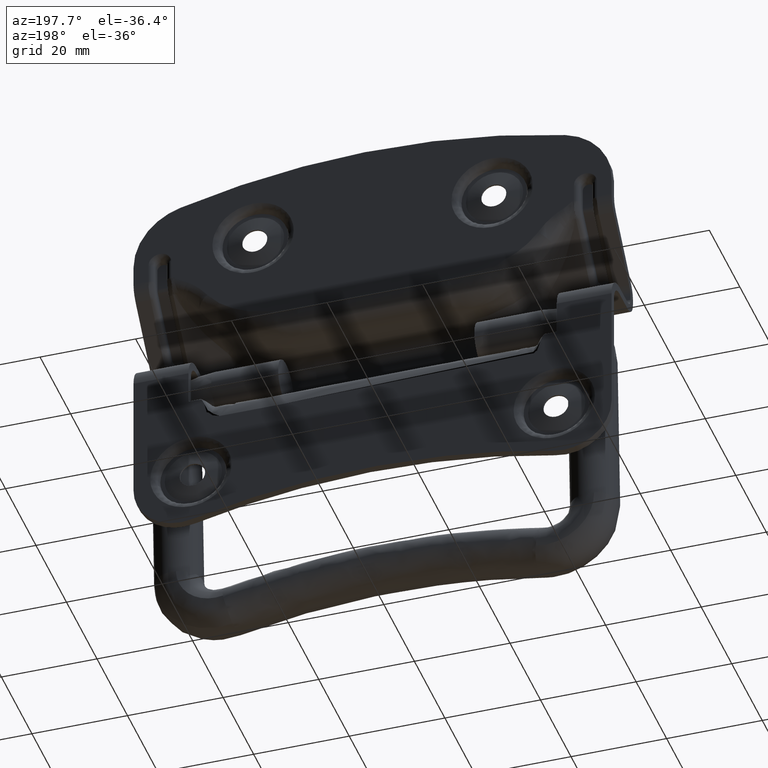
[diagram: clean part render]
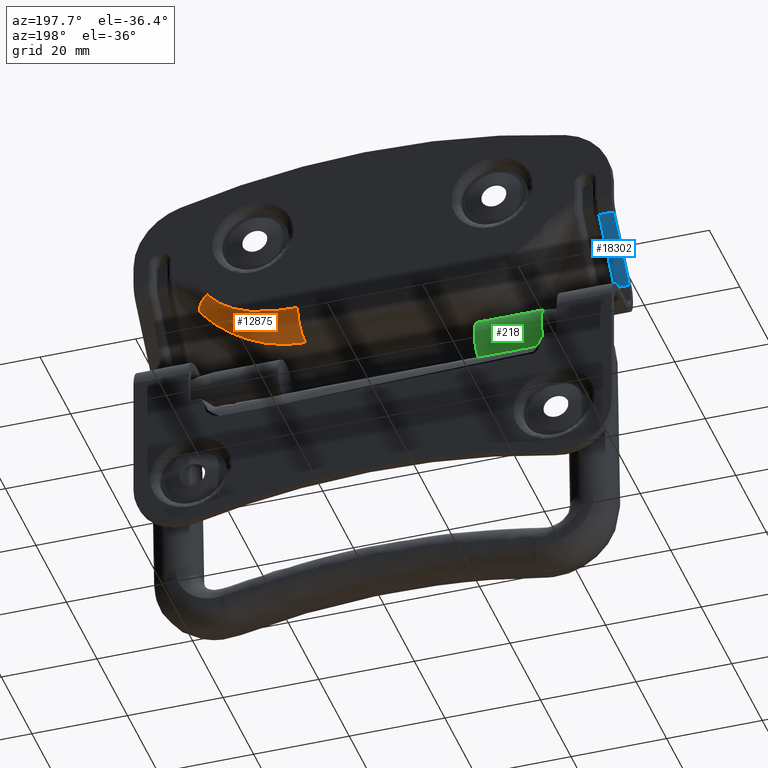
[diagram: same view with three faces highlighted in distinct colors, each labeled with its STEP entity id]
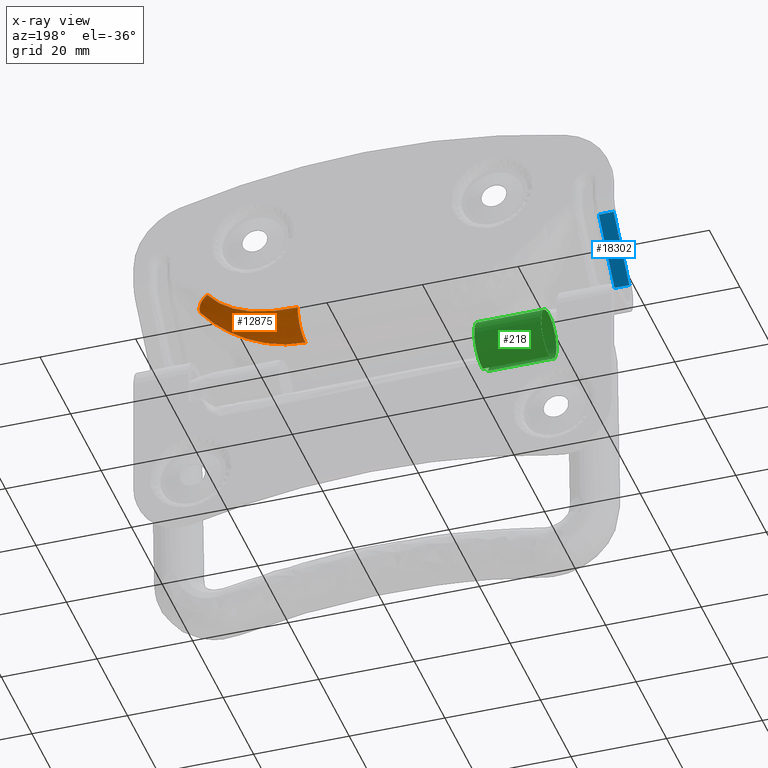
[diagram: x-ray of the same camera — body ghosted, the three highlighted faces saturated]
A machine part, auxiliary view with three faces highlighted in distinct colors.
The next image is the same camera in x-ray (body ghosted, the three faces saturated) — at least one of them is partly hidden behind the body in this view.
Their STEP definitions:

[orange] entity #12875 — the highlighted face is a freeform B-spline surface patch.
#12489=CARTESIAN_POINT('',(34.662643738364352,7.400014477414318,20.256130089252661));
#12490=CARTESIAN_POINT('',(34.671101388880231,7.400010842266958,20.249908536307004));
#12491=CARTESIAN_POINT('',(34.688406640191637,7.400003209135880,20.237178568327653));
#12492=CARTESIAN_POINT('',(35.698332820770993,7.399656371181691,19.494267234850092));
#12493=CARTESIAN_POINT('',(36.759531507466541,6.081373431551404,18.713642809535408));
#12494=CARTESIAN_POINT('',(37.030359441739215,5.232471756975100,18.514407756423495));
#12495=CARTESIAN_POINT('',(37.093769435582637,4.808236048571881,18.467747150005760));
#12496=CARTESIAN_POINT('',(37.109026596200167,4.601419557275713,18.456513226048834));
#12497=CARTESIAN_POINT('',(37.112750251999493,4.499853491559945,18.453771216477765));
#12498=CARTESIAN_POINT('',(37.113672902552622,4.449588384365417,18.453091850598920));
#12499=CARTESIAN_POINT('',(37.113904197476359,4.424591837451268,18.452921585667134));
#12500=CARTESIAN_POINT('',(37.113963102675349,4.412128375925347,18.452878242838263));
#12501=CARTESIAN_POINT('',(37.113983563816213,4.403833499588435,18.452863200303955));
#12502=CARTESIAN_POINT('',(37.113985075424210,4.396662263227849,18.452862110349063));
#12503=CARTESIAN_POINT('',(37.113986223987908,4.390617544954171,18.452861292794474));
#12504=CARTESIAN_POINT('',(37.113987756531024,4.381569386885241,18.452860219648816));
#12505=CARTESIAN_POINT('',(37.113989884776082,4.365031225293210,18.452858802255239));
#12506=CARTESIAN_POINT('',(37.113990466953290,4.354543282384281,18.452858525926331));
#12507=CARTESIAN_POINT('',(34.524661308499191,7.400014514383114,20.065935970038900));
#12508=CARTESIAN_POINT('',(34.533059287550643,7.400010881933937,20.059640846689394));
#12509=CARTESIAN_POINT('',(34.550242413959083,7.400003248278073,20.046760373116612));
#12510=CARTESIAN_POINT('',(35.553062213858887,7.399658141751877,19.295046099971429));
#12511=CARTESIAN_POINT('',(36.606821426173894,6.081951666058495,18.505147363269717));
#12512=CARTESIAN_POINT('',(36.875708125105007,5.233438924711869,18.303590457533719));
#12513=CARTESIAN_POINT('',(36.938481864994365,4.809384788669394,18.256532156973897));
#12514=CARTESIAN_POINT('',(36.953890731252748,4.602671500692584,18.244965452863578));
#12515=CARTESIAN_POINT('',(36.957641955025593,4.501146752349327,18.242151127028201));
#12516=CARTESIAN_POINT('',(36.958544816859671,4.450901334226933,18.241475194128917));
#12517=CARTESIAN_POINT('',(36.958824701700436,4.425914271088613,18.241264961478191));
#12518=CARTESIAN_POINT('',(36.958922178603792,4.413455466486351,18.241191479511418));
#12519=CARTESIAN_POINT('',(36.958971178333371,4.405163660152935,18.241154427191130));
#12520=CARTESIAN_POINT('',(36.958999000435121,4.397994911127927,18.241133263441029));
#12521=CARTESIAN_POINT('',(36.959022856918494,4.391952365689596,18.241115108195249));
#12522=CARTESIAN_POINT('',(36.959058381923207,4.382907557213478,18.241088061067892));
#12523=CARTESIAN_POINT('',(36.959114080898807,4.366375743837189,18.241045610721894));
#12524=CARTESIAN_POINT('',(36.959123387104043,4.355892020289344,18.241038477309619));
#12525=CARTESIAN_POINT('',(34.240171253142506,7.400014547952364,19.693514720066311));
#12526=CARTESIAN_POINT('',(34.248457365722160,7.400010916348322,19.687061312273741));
#12527=CARTESIAN_POINT('',(34.265411386649895,7.400003261066324,19.673857178041924));
#12528=CARTESIAN_POINT('',(35.254918778094932,7.399663643437767,18.903199537057191));
#12529=CARTESIAN_POINT('',(36.294746659661762,6.081193240693532,18.093348020157716));
#12530=CARTESIAN_POINT('',(36.560047965215048,5.232235079051666,17.886747533107052));
#12531=CARTESIAN_POINT('',(36.621190502785439,4.807934081878996,17.839154379086924));
#12532=CARTESIAN_POINT('',(36.634003844042731,4.601082439164326,17.829213199420280));
#12533=CARTESIAN_POINT('',(36.637146643992907,4.499506731072167,17.826767432050211));
#12534=CARTESIAN_POINT('',(36.638051290717698,4.449237425571144,17.826059563720477));
#12535=CARTESIAN_POINT('',(36.638045594258713,4.424238922907685,17.826058655466070));
#12536=CARTESIAN_POINT('',(36.637928500023776,4.411774492144252,17.826146171855012));
#12537=CARTESIAN_POINT('',(36.637820805791691,4.403478980725156,17.826227417625500));
#12538=CARTESIAN_POINT('',(36.637706561369242,4.396307274923768,17.826314041169486));
#12539=CARTESIAN_POINT('',(36.637610609431128,4.390262122367993,17.826386803031927));
#12540=CARTESIAN_POINT('',(36.637471659324511,4.381213266290241,17.826492169134536));
#12541=CARTESIAN_POINT('',(36.637270523705496,4.364673732250767,17.826644552110313));
#12542=CARTESIAN_POINT('',(36.637266123697088,4.354184860860634,17.826647348732394));
#12543=CARTESIAN_POINT('',(33.864466229905375,7.400014774033779,19.247753255306069));
#12544=CARTESIAN_POINT('',(33.872628632089295,7.400011127111525,19.241075771387713));
#12545=CARTESIAN_POINT('',(33.889329497550364,7.400003457226122,19.227413186569720));
#12546=CARTESIAN_POINT('',(34.864079919530091,7.399658272573803,18.429984116949299));
#12547=CARTESIAN_POINT('',(35.888578476351491,6.075796651755698,17.591844505066774));
#12548=CARTESIAN_POINT('',(36.150115785445053,5.223323557977594,17.377936455358565));
#12549=CARTESIAN_POINT('',(36.211837362331892,4.797296340673467,17.327485156780117));
#12550=CARTESIAN_POINT('',(36.227433103292732,4.589605555717400,17.314769717228511));
#12551=CARTESIAN_POINT('',(36.230855275732296,4.487613942315691,17.311987931265559));
#12552=CARTESIAN_POINT('',(36.231289746682883,4.437139037076157,17.311626805847236));
#12553=CARTESIAN_POINT('',(36.231281866563165,4.412038326199886,17.311629949896517));
#12554=CARTESIAN_POINT('',(36.231228122745620,4.399522939866957,17.311672678332787));
#12555=CARTESIAN_POINT('',(36.231174551510477,4.391193504808857,17.311715735695621));
#12556=CARTESIAN_POINT('',(36.231112217070645,4.383992369933384,17.311766083722741));
#12557=CARTESIAN_POINT('',(36.231058584476706,4.377922457025449,17.311809385879595));
#12558=CARTESIAN_POINT('',(36.230975891214342,4.368836592591022,17.311876087669848));
#12559=CARTESIAN_POINT('',(36.230808510868222,4.352229507618922,17.312010527726994));
#12560=CARTESIAN_POINT('',(36.230671162532296,4.341697818404677,17.312119670805743));
#12561=CARTESIAN_POINT('',(33.552554212520150,7.400014973620166,18.902936838102374));
#12562=CARTESIAN_POINT('',(33.560625663539987,7.400011301998076,18.896065447811409));
#12563=CARTESIAN_POINT('',(33.577140443462142,7.400003621386585,18.882006113737653));
#12564=CARTESIAN_POINT('',(34.541030498556630,7.399646267264336,18.061420115315986));
#12565=CARTESIAN_POINT('',(35.554316295962472,6.068981362347913,17.198763932820935));
#12566=CARTESIAN_POINT('',(35.813138332169274,5.212070805745937,16.978505186691290));
#12567=CARTESIAN_POINT('',(35.873897872008463,4.783857273409834,16.926832807978940));
#12568=CARTESIAN_POINT('',(35.888192583982892,4.575094176908542,16.914656148039015));
#12569=CARTESIAN_POINT('',(35.891561408505474,4.472578683263027,16.911773873094717));
#12570=CARTESIAN_POINT('',(35.892362714350512,4.421844502739250,16.911089884870123));
#12571=CARTESIAN_POINT('',(35.892549484684068,4.396614823310419,16.910933983826567));
#12572=CARTESIAN_POINT('',(35.892588222060162,4.384035131236461,16.910902839826242));
#12573=CARTESIAN_POINT('',(35.892596057541319,4.375662901743065,16.910897456158864));
#12574=CARTESIAN_POINT('',(35.892587364374698,4.368424793817018,16.910905991148173));
#12575=CARTESIAN_POINT('',(35.892579964621518,4.362323706187193,16.910913251210001));
#12576=CARTESIAN_POINT('',(35.892568872517039,4.353191165998672,16.910924130329789));
#12577=CARTESIAN_POINT('',(35.892549598486326,4.336498751640900,16.910943160128173));
#12578=CARTESIAN_POINT('',(35.892540005590902,4.325912951926310,16.910952891790760));
#12579=CARTESIAN_POINT('',(33.313124862674577,7.400015147428111,18.650202505973137));
#12580=CARTESIAN_POINT('',(33.321131726613537,7.400011454505069,18.643178604619433));
#12581=CARTESIAN_POINT('',(33.337514381733307,7.400003763880306,18.628807208941300));
#12582=CARTESIAN_POINT('',(34.293682129170811,7.399636108551142,17.790016026583643));
#12583=CARTESIAN_POINT('',(35.299046312314573,6.062659838843519,16.908051896783707));
#12584=CARTESIAN_POINT('',(35.555845848152501,5.201647839661933,16.682875443480757));
#12585=CARTESIAN_POINT('',(35.615712240687586,4.771399609269096,16.630403261546498));
#12586=CARTESIAN_POINT('',(35.629672448472185,4.561644724081489,16.618159985948203));
#12587=CARTESIAN_POINT('',(35.633108229332734,4.458642005782503,16.615146922126325));
#12588=CARTESIAN_POINT('',(35.634015163908145,4.407666779519416,16.614354120051363));
#12589=CARTESIAN_POINT('',(35.634265766212735,4.382317304927274,16.614135469619907));
#12590=CARTESIAN_POINT('',(35.634340006896721,4.369677887956904,16.614070972947186));
#12591=CARTESIAN_POINT('',(35.634372334907873,4.361265910132276,16.614043040375869));
#12592=CARTESIAN_POINT('',(35.634385392898508,4.353993433836158,16.614031960300622));
#12593=CARTESIAN_POINT('',(35.634396449569472,4.347863378792042,16.614022578402491));
#12594=CARTESIAN_POINT('',(35.634412973008764,4.338687480312035,16.614008557173449));
#12595=CARTESIAN_POINT('',(35.634442363868509,4.321915817182809,16.613983599061154));
#12596=CARTESIAN_POINT('',(35.634458646863102,4.311279753224095,16.613969743522322));
#12597=CARTESIAN_POINT('',(33.068377471046183,7.400015320699940,18.403329146651021));
#12598=CARTESIAN_POINT('',(33.076322998577673,7.400011603438846,18.396145887641246));
#12599=CARTESIAN_POINT('',(33.092580242104830,7.400003894818879,18.381448358874813));
#12600=CARTESIAN_POINT('',(34.041407685866169,7.399625921504299,17.523640273041025));
#12601=CARTESIAN_POINT('',(35.039272339172975,6.055172616348810,16.621490598202701));
#12602=CARTESIAN_POINT('',(35.294078710802467,5.189313093902327,16.391229651610505));
#12603=CARTESIAN_POINT('',(35.353308982595934,4.756653157050159,16.337715437898925));
#12604=CARTESIAN_POINT('',(35.367139324297383,4.545722748826468,16.325230859531860));
#12605=CARTESIAN_POINT('',(35.370483043621284,4.442143195361625,16.322214487398224));
#12606=CARTESIAN_POINT('',(35.371395052589527,4.390882517714075,16.321392980152822));
#12607=CARTESIAN_POINT('',(35.371654565596259,4.365391078815889,16.321160071886503));
#12608=CARTESIAN_POINT('',(35.371733757536063,4.352680877009470,16.321089340043724));
#12609=CARTESIAN_POINT('',(35.371769526583968,4.344221789478674,16.321057582161430));
#12610=CARTESIAN_POINT('',(35.371785676317330,4.336908586387330,16.321043486779839));
#12611=CARTESIAN_POINT('',(35.371799356865928,4.330744201867815,16.321031548282690));
#12612=CARTESIAN_POINT('',(35.371819860530984,4.321516916248496,16.321013661211310));
#12613=CARTESIAN_POINT('',(35.371857048328195,4.304651328202577,16.320981261030163));
#12614=CARTESIAN_POINT('',(35.371879396158583,4.293955701913419,16.320961874176682));
#12615=CARTESIAN_POINT('',(32.735194151457108,7.400015531963038,18.081955730871442));
#12616=CARTESIAN_POINT('',(32.743061708238706,7.400011779156962,18.074551204679867));
#12617=CARTESIAN_POINT('',(32.759159524256056,7.400004031703089,18.059400845521679));
#12618=CARTESIAN_POINT('',(33.698656169578662,7.399613694103234,17.175188172838258));
#12619=CARTESIAN_POINT('',(34.686984605735290,6.043694348808678,16.245021041748100));
#12620=CARTESIAN_POINT('',(34.939260771796057,5.170414597482155,16.007690679109452));
#12621=CARTESIAN_POINT('',(34.998046494285205,4.734056865722560,15.952385751781057));
#12622=CARTESIAN_POINT('',(35.011934820240299,4.521324563681282,15.939354647614779));
#12623=CARTESIAN_POINT('',(35.015258727670975,4.416860252320030,15.936254781602978));
#12624=CARTESIAN_POINT('',(35.016078850056175,4.365161798929774,15.935486950366679));
#12625=CARTESIAN_POINT('',(35.016279379959180,4.339452675133761,15.935298737863794));
#12626=CARTESIAN_POINT('',(35.016327572358833,4.326633935960560,15.935253496373411));
#12627=CARTESIAN_POINT('',(35.016342400259816,4.318102613369718,15.935239592676293));
#12628=CARTESIAN_POINT('',(35.016340315275237,4.310726960217887,15.935241592315430));
#12629=CARTESIAN_POINT('',(35.016338517950977,4.304509936098402,15.935243318824263));
#12630=CARTESIAN_POINT('',(35.016335762446253,4.295203856136522,15.935245976294116));
#12631=CARTESIAN_POINT('',(35.016330456076737,4.278194248697447,15.935251163268198));
#12632=CARTESIAN_POINT('',(35.016326717449850,4.267407289113312,15.935254975631553));
#12633=CARTESIAN_POINT('',(32.306308997268538,7.400015715024614,17.694803642800373));
#12634=CARTESIAN_POINT('',(32.314085302321878,7.400011913330455,17.687106635746701));
#12635=CARTESIAN_POINT('',(32.329996506132687,7.400004089240436,17.671357721623139));
#12636=CARTESIAN_POINT('',(33.258580838899690,7.399602138457555,16.752237561555098));
#12637=CARTESIAN_POINT('',(34.235692668361487,6.026654983141088,15.785095735690975));
#12638=CARTESIAN_POINT('',(34.485154546364690,5.142375602180090,15.538275457729155));
#12639=CARTESIAN_POINT('',(34.543477762420579,4.700528367214872,15.480623619989938));
#12640=CARTESIAN_POINT('',(34.557395068461297,4.485121570282724,15.466869238301518));
#12641=CARTESIAN_POINT('',(34.560731094259637,4.379344177770140,15.463566516909912));
#12642=CARTESIAN_POINT('',(34.561474327266438,4.326995773201274,15.462841820468492));
#12643=CARTESIAN_POINT('',(34.561624272008650,4.300963413976035,15.462701639891455));
#12644=CARTESIAN_POINT('',(34.561646414921931,4.287983507095215,15.462684066469198));
#12645=CARTESIAN_POINT('',(34.561643753688209,4.279344921733133,15.462689658812335));
#12646=CARTESIAN_POINT('',(34.561626536582750,4.271876536176829,15.462709290577260));
#12647=CARTESIAN_POINT('',(34.561611910175472,4.265581347036758,15.462725964672654));
#12648=CARTESIAN_POINT('',(34.561589893343950,4.256158264571284,15.462751055447868));
#12649=CARTESIAN_POINT('',(34.561549427074858,4.238934802514164,15.462797126072061));
#12650=CARTESIAN_POINT('',(34.561524311249052,4.228012226803383,15.462825621345235));
#12651=CARTESIAN_POINT('',(31.595523207014967,7.400015797137360,17.106244521892911));
#12652=CARTESIAN_POINT('',(31.603162517120623,7.400011927178450,17.098048397686249));
#12653=CARTESIAN_POINT('',(31.618793499681033,7.400003974761791,17.081278117289052));
#12654=CARTESIAN_POINT('',(32.531003776149852,7.399591213764398,16.102580984257742));
#12655=CARTESIAN_POINT('',(33.491229172770289,5.994129693669576,15.072411588358182));
#12656=CARTESIAN_POINT('',(33.736420039645992,5.088875682716460,14.809340013027606));
#12657=CARTESIAN_POINT('',(33.793781563371056,4.636553027873297,14.747892687152925));
#12658=CARTESIAN_POINT('',(33.807366072122228,4.416039979823885,14.733427350517886));
#12659=CARTESIAN_POINT('',(33.810590340869943,4.307755334502247,14.730015639609260));
#12660=CARTESIAN_POINT('',(33.811372259141208,4.254166329939144,14.729191677459987));
#12661=CARTESIAN_POINT('',(33.811560233843828,4.227517072930827,14.728996529100627));
#12662=CARTESIAN_POINT('',(33.811603623759190,4.214229581157113,14.728953170345148));
#12663=CARTESIAN_POINT('',(33.811615771389398,4.205386288459806,14.728942260061917));
#12664=CARTESIAN_POINT('',(33.811611804413715,4.197740926373735,14.728948358637002));
#12665=CARTESIAN_POINT('',(33.811608422885271,4.191296562038136,14.728953552719293));
#12666=CARTESIAN_POINT('',(33.811603295637461,4.181650184072616,14.728961421829707));
#12667=CARTESIAN_POINT('',(33.811593647933059,4.164018584613552,14.728976217009428));
#12668=CARTESIAN_POINT('',(33.811587067565888,4.152837179989603,14.728986314990335));
#12669=CARTESIAN_POINT('',(30.664527336428819,7.400015724780797,16.428104555028206));
#12670=CARTESIAN_POINT('',(30.672004761530356,7.400011801090363,16.419230902882827));
#12671=CARTESIAN_POINT('',(30.687304561969860,7.400003731322142,16.401074205151708));
#12672=CARTESIAN_POINT('',(31.580176590296315,7.399586686545440,15.341496149294940));
#12673=CARTESIAN_POINT('',(32.520189114828575,5.944506913848554,14.226041360119888));
#12674=CARTESIAN_POINT('',(32.760645228186270,5.007272296007837,13.940781460230168));
#12675=CARTESIAN_POINT('',(32.816748398413388,4.538971963650059,13.874309369765786));
#12676=CARTESIAN_POINT('',(32.829936028863557,4.310669962580341,13.858675956249540));
#12677=CARTESIAN_POINT('',(32.833111208105734,4.198560573441938,13.854934196229962));
#12678=CARTESIAN_POINT('',(32.833892746861160,4.143078611512803,13.854056600291273));
#12679=CARTESIAN_POINT('',(32.834082934810503,4.115487994336919,13.853858697972006));
#12680=CARTESIAN_POINT('',(32.834128484626696,4.101731133303661,13.853819034852442));
#12681=CARTESIAN_POINT('',(32.834142388822627,4.092575458799110,13.853812210673681));
#12682=CARTESIAN_POINT('',(32.834140237349374,4.084660030847640,13.853823199068007));
#12683=CARTESIAN_POINT('',(32.834138382338800,4.077988024837512,13.853832542840697));
#12684=CARTESIAN_POINT('',(32.834135540300281,4.068000896826981,13.853846644544600));
#12685=CARTESIAN_POINT('',(32.834130075895608,4.049746476649984,13.853872796664685));
#12686=CARTESIAN_POINT('',(32.834126212312860,4.038170100823105,13.853889651407414));
#12687=CARTESIAN_POINT('',(29.490687647794100,7.400016116957394,15.705311426124155));
#12688=CARTESIAN_POINT('',(29.497961073750648,7.400012207955100,15.695554707391588));
#12689=CARTESIAN_POINT('',(29.512843251198987,7.400004170044308,15.675591352410574));
#12690=CARTESIAN_POINT('',(30.381409073725425,7.399588346232064,14.510516613601139));
#12691=CARTESIAN_POINT('',(31.295387616141063,5.873488281818676,13.284625734101120));
#12692=CARTESIAN_POINT('',(31.529022204958085,4.890493053248332,12.971238622073866));
#12693=CARTESIAN_POINT('',(31.583997823974023,4.399327726758576,12.897583563623622));
#12694=CARTESIAN_POINT('',(31.597055409070972,4.159878898932301,12.880248917024149));
#12695=CARTESIAN_POINT('',(31.600183629212108,4.042295835097199,12.876156980585408));
#12696=CARTESIAN_POINT('',(31.600937041176440,3.984105112572422,12.875189672637484));
#12697=CARTESIAN_POINT('',(31.601116863092390,3.955167465089275,12.874969888969959));
#12698=CARTESIAN_POINT('',(31.601158262855119,3.940738967175700,12.874925040354402));
#12699=CARTESIAN_POINT('',(31.601169802336614,3.931136294861874,12.874916699527020));
#12700=CARTESIAN_POINT('',(31.601165958862371,3.922834420392893,12.874928047688989));
#12701=CARTESIAN_POINT('',(31.601162676011029,3.915836673939639,12.874937705166621));
#12702=CARTESIAN_POINT('',(31.601157696490215,3.905361954374920,12.874952287597942));
#12703=CARTESIAN_POINT('',(31.601148401383615,3.886216315390629,12.874979386164272));
#12704=CARTESIAN_POINT('',(31.601142393247546,3.874074754796970,12.874996998059505));
#12705=CARTESIAN_POINT('',(27.865212710793134,7.400016167054936,14.861389029460319));
#12706=CARTESIAN_POINT('',(27.872167696469980,7.400012419364004,14.850383873073698));
#12707=CARTESIAN_POINT('',(27.886397405432827,7.400004747865416,14.827867452473468));
#12708=CARTESIAN_POINT('',(28.717146066089100,7.399597931242420,13.513391709485802));
#12709=CARTESIAN_POINT('',(29.590514755700532,5.767333688980315,12.131535609023965));
#12710=CARTESIAN_POINT('',(29.813666669850871,4.715938795114729,11.778450927516127));
#12711=CARTESIAN_POINT('',(29.866218334213251,4.190592998198996,11.695393159160085));
#12712=CARTESIAN_POINT('',(29.878764542968586,3.934480899836798,11.675647322539183));
#12713=CARTESIAN_POINT('',(29.881907597044925,3.808715142817832,11.670810673836792));
#12714=CARTESIAN_POINT('',(29.882731388872244,3.746474855161845,11.669599828100599));
#12715=CARTESIAN_POINT('',(29.882959076260150,3.715523392488942,11.669288614115800));
#12716=CARTESIAN_POINT('',(29.883027176339517,3.700090791329295,11.669205883431522));
#12717=CARTESIAN_POINT('',(29.883057383822003,3.689819852373670,11.669174867114082));
#12718=CARTESIAN_POINT('',(29.883070442000669,3.680940235489425,11.669168834307413));
#12719=CARTESIAN_POINT('',(29.883081476277326,3.673455502608133,11.669163722248136));
#12720=CARTESIAN_POINT('',(29.883098063040734,3.662251826525432,11.669156067753157));
#12721=CARTESIAN_POINT('',(29.883128526947168,3.641773801114063,11.669142022248472));
#12722=CARTESIAN_POINT('',(29.883147849336083,3.628787280143444,11.669133112815967));
#12723=CARTESIAN_POINT('',(26.595254604592878,7.400014503187752,14.361567900396166));
#12724=CARTESIAN_POINT('',(26.601885070361991,7.400010909120438,14.349565089523789));
#12725=CARTESIAN_POINT('',(26.615451511256285,7.400003518595831,14.325006433036103));
#12726=CARTESIAN_POINT('',(27.407275421628032,7.399621186485401,12.891615899824842));
#12727=CARTESIAN_POINT('',(28.239488888613110,5.679122930258590,11.385248314467368));
#12728=CARTESIAN_POINT('',(28.450929333767832,4.570885535794028,11.002412125736388));
#12729=CARTESIAN_POINT('',(28.500625227253892,4.017136529709241,10.912573862986367));
#12730=CARTESIAN_POINT('',(28.513029840772919,3.747175675080785,10.890286364571320));
#12731=CARTESIAN_POINT('',(28.516286559807064,3.614609415408631,10.884489602799658));
#12732=CARTESIAN_POINT('',(28.517195720488925,3.549003550914630,10.882890890198798));
#12733=CARTESIAN_POINT('',(28.517474202232666,3.516378408449464,10.882410269477795));
#12734=CARTESIAN_POINT('',(28.517570073025794,3.500111296018232,10.882248528178565));
#12735=CARTESIAN_POINT('',(28.517619586285505,3.489284959201809,10.882166791575260));
#12736=CARTESIAN_POINT('',(28.517650051338190,3.479925178607085,10.882118493618961));
#12737=CARTESIAN_POINT('',(28.517675868172752,3.472035709130866,10.882077572477678));
#12738=CARTESIAN_POINT('',(28.517714709526423,3.460226193248722,10.882015997197023));
#12739=CARTESIAN_POINT('',(28.517786429193965,3.438640810939856,10.881902304353666));
#12740=CARTESIAN_POINT('',(28.517832755927568,3.424952032752865,10.881828886995795));
#12741=CARTESIAN_POINT('',(22.324956304152273,7.400010831806388,12.983818235968997));
#12742=CARTESIAN_POINT('',(22.330140775239688,7.400008136684458,12.968471817176550));
#12743=CARTESIAN_POINT('',(22.340749034509550,7.400002511823433,12.937071322886284));
#12744=CARTESIAN_POINT('',(22.959767797844886,7.399734168540986,11.104526212900410));
#12745=CARTESIAN_POINT('',(23.611219927571344,5.385170634058366,9.176682415768873));
#12746=CARTESIAN_POINT('',(23.777867581947419,4.087432698041937,8.684367560936440));
#12747=CARTESIAN_POINT('',(23.816367813142623,3.438973408923038,8.570042469849025));
#12748=CARTESIAN_POINT('',(23.825402380339263,3.122844485924674,8.542165282036184));
#12749=CARTESIAN_POINT('',(23.827646951360915,2.967602440640773,8.534562576177578));
#12750=CARTESIAN_POINT('',(23.828247757548997,2.890774257393993,8.532320663439704));
#12751=CARTESIAN_POINT('',(23.828421592052962,2.852568283411952,8.531581364349945));
#12752=CARTESIAN_POINT('',(23.828474439416990,2.833518517383632,8.531311052051539));
#12753=CARTESIAN_POINT('',(23.828498522397602,2.820840222917924,8.531163632850166));
#12754=CARTESIAN_POINT('',(23.828509656816934,2.809879352288808,8.531064474076395));
#12755=CARTESIAN_POINT('',(23.828519095370840,2.800640303554124,8.530980445706257));
#12756=CARTESIAN_POINT('',(23.828533275818241,2.786810640165927,8.530854091184960));
#12757=CARTESIAN_POINT('',(23.828559291885000,2.761532837728383,8.530621376520761));
#12758=CARTESIAN_POINT('',(23.828575003985655,2.745502442722784,8.530473784780254));
#12759=CARTESIAN_POINT('',(18.818800874250947,7.400007477546794,12.764095840424741));
#12760=CARTESIAN_POINT('',(18.821588320202896,7.400005663026929,12.746140249608668));
#12761=CARTESIAN_POINT('',(18.827291765332625,7.400002245684156,12.709399266932268));
#12762=CARTESIAN_POINT('',(19.160127473167130,7.399728417759317,10.565750031903475));
#12763=CARTESIAN_POINT('',(19.509971201244014,5.149745662300645,8.309332346534980));
#12764=CARTESIAN_POINT('',(19.599031857437392,3.700478779364815,7.733089702547624));
#12765=CARTESIAN_POINT('',(19.620037447097740,2.976357378961162,7.598103157130077));
#12766=CARTESIAN_POINT('',(19.625003070177744,2.623317603402722,7.566703765794353));
#12767=CARTESIAN_POINT('',(19.626204154956113,2.449961981356681,7.559513434735863));
#12768=CARTESIAN_POINT('',(19.626414223861687,2.364169817776509,7.558040022812190));
#12769=CARTESIAN_POINT('',(19.626421447475494,2.321506267629081,7.557823420569259));
#12770=CARTESIAN_POINT('',(19.626406444828788,2.300233928690102,7.557835299882135));
#12771=CARTESIAN_POINT('',(19.626389938161722,2.286076431806001,7.557883501084748));
#12772=CARTESIAN_POINT('',(19.626370238013223,2.273836729478459,7.557959651640209));
#12773=CARTESIAN_POINT('',(19.626353522550435,2.263519733647839,7.558024235828201));
#12774=CARTESIAN_POINT('',(19.626328384330375,2.248076513931941,7.558121414512524));
#12775=CARTESIAN_POINT('',(19.626282082839726,2.219849416720298,7.558300704918190));
#12776=CARTESIAN_POINT('',(19.626253934752039,2.201948610872653,7.558413652383844));
#12777=CARTESIAN_POINT('',(15.478741939574645,7.400004381656604,12.773201338595175));
#12778=CARTESIAN_POINT('',(15.478568745599672,7.400003172962791,12.755354040129024));
#12779=CARTESIAN_POINT('',(15.478214364458854,7.400000331819881,12.718836278878072));
#12780=CARTESIAN_POINT('',(15.457536349542528,7.399960193383114,10.587772164278441));
#12781=CARTESIAN_POINT('',(15.435794653102025,5.159081603503349,8.348119036598725));
#12782=CARTESIAN_POINT('',(15.430255980674309,3.715970096529657,7.776778278683357));
#12783=CARTESIAN_POINT('',(15.428967402747615,2.994798043943758,7.643443423847941));
#12784=CARTESIAN_POINT('',(15.428661668343993,2.643232008050337,7.611573625658166));
#12785=CARTESIAN_POINT('',(15.428587253587011,2.470580882574454,7.603823667437810));
#12786=CARTESIAN_POINT('',(15.428568867962577,2.385136262640397,7.601908666324987));
#12787=CARTESIAN_POINT('',(15.428564273440804,2.342645165668593,7.601430706117970));
#12788=CARTESIAN_POINT('',(15.428563112773318,2.321458790050244,7.601309943335320));
#12789=CARTESIAN_POINT('',(15.428562715686162,2.307358500024753,7.601268610019871));
#12790=CARTESIAN_POINT('',(15.428562696547587,2.295168257315335,7.601266563875260));
#12791=CARTESIAN_POINT('',(15.428562678721439,2.284892955369291,7.601264823884991));
#12792=CARTESIAN_POINT('',(15.428562649484959,2.269512154580956,7.601262186211162));
#12793=CARTESIAN_POINT('',(15.428562586630047,2.241399195010265,7.601257183730169));
#12794=CARTESIAN_POINT('',(15.428562535840783,2.223570852738989,7.601253704516166));
#12802=(BOUNDED_SURFACE()B_SPLINE_SURFACE(2,3,((#12489,#12507,#12525,#12543,#12561,#12579,#12597,#12615,#12633,#12651,#12669,#12687,#12705,#12723,#12741,#12759,#12777),(#12490,#12508,#12526,#12544,#12562,#12580,#12598,#12616,#12634,#12652,#12670,#12688,#12706,#12724,#12742,#12760,#12778),(#12491,#12509,#12527,#12545,#12563,#12581,#12599,#12617,#12635,#12653,#12671,#12689,#12707,#12725,#12743,#12761,#12779),(#12492,#12510,#12528,#12546,#12564,#12582,#12600,#12618,#12636,#12654,#12672,#12690,#12708,#12726,#12744,#12762,#12780),(#12493,#12511,#12529,#12547,#12565,#12583,#12601,#12619,#12637,#12655,#12673,#12691,#12709,#12727,#12745,#12763,#12781),(#12494,#12512,#12530,#12548,#12566,#12584,#12602,#12620,#12638,#12656,#12674,#12692,#12710,#12728,#12746,#12764,#12782),(#12495,#12513,#12531,#12549,#12567,#12585,#12603,#12621,#12639,#12657,#12675,#12693,#12711,#12729,#12747,#12765,#12783),(#12496,#12514,#12532,#12550,#12568,#12586,#12604,#12622,#12640,#12658,#12676,#12694,#12712,#12730,#12748,#12766,#12784),(#12497,#12515,#12533,#12551,#12569,#12587,#12605,#12623,#12641,#12659,#12677,#12695,#12713,#12731,#12749,#12767,#12785),(#12498,#12516,#12534,#12552,#12570,#12588,#12606,#12624,#12642,#12660,#12678,#12696,#12714,#12732,#12750,#12768,#12786),(#12499,#12517,#12535,#12553,#12571,#12589,#12607,#12625,#12643,#12661,#12679,#12697,#12715,#12733,#12751,#12769,#12787),(#12500,#12518,#12536,#12554,#12572,#12590,#12608,#12626,#12644,#12662,#12680,#12698,#12716,#12734,#12752,#12770,#12788),(#12501,#12519,#12537,#12555,#12573,#12591,#12609,#12627,#12645,#12663,#12681,#12699,#12717,#12735,#12753,#12771,#12789),(#12502,#12520,#12538,#12556,#12574,#12592,#12610,#12628,#12646,#12664,#12682,#12700,#12718,#12736,#12754,#12772,#12790),(#12503,#12521,#12539,#12557,#12575,#12593,#12611,#12629,#12647,#12665,#12683,#12701,#12719,#12737,#12755,#12773,#12791),(#12504,#12522,#12540,#12558,#12576,#12594,#12612,#12630,#12648,#12666,#12684,#12702,#12720,#12738,#12756,#12774,#12792),(#12505,#12523,#12541,#12559,#12577,#12595,#12613,#12631,#12649,#12667,#12685,#12703,#12721,#12739,#12757,#12775,#12793),(#12506,#12524,#12542,#12560,#12578,#12596,#12614,#12632,#12650,#12668,#12686,#12704,#12722,#12740,#12758,#12776,#12794)),.UNSPECIFIED.,.F.,.F.,.U.)B_SPLINE_SURFACE_WITH_KNOTS((3,1,1,1,1,1,1,1,1,1,1,1,1,1,1,1,3),(4,1,1,1,1,1,1,1,1,1,1,1,2,4),(0.0,0.042260448230966,0.086088868899219,4.310858252466037,6.423242944249446,7.479435290141151,8.007531463087002,8.271579549559927,8.403603592796390,8.469615614414622,8.502621625223739,8.519124630628298,8.535627636032855,8.547687735993682,8.559747835954509,8.583868035876163,8.626112960597327),(0.0,0.791841193814918,1.583682387629835,1.979602984537294,2.375523581444753,2.771444178352212,3.167364775259671,3.959205969074588,4.751047162889506,6.334729550519342,7.918411938149177,9.502094325779012,12.669459101038679,25.338866778109661),.UNSPECIFIED.)GEOMETRIC_REPRESENTATION_ITEM()RATIONAL_B_SPLINE_SURFACE(((1.005968336641991,1.005968336641991,1.005968336641991,1.005968336641991,1.005968336641991,1.005968336641991,1.005968336641991,1.005968336641991,1.005968336641991,1.005968336641991,1.005968336641991,1.005968336641991,1.005968336641991,1.005968336641991,1.005968336641991,1.005968336641991,1.005968336641991),(1.004503428431969,1.004503428431969,1.004503428431969,1.004503428431969,1.004503428431969,1.004503428431969,1.004503428431969,1.004503428431969,1.004503428431969,1.004503428431969,1.004503428431969,1.004503428431969,1.004503428431969,1.004503428431969,1.004503428431969,1.004503428431969,1.004503428431969),(1.001519260110974,1.001519260110974,1.001519260110974,1.001519260110974,1.001519260110974,1.001519260110974,1.001519260110974,1.001519260110974,1.001519260110974,1.001519260110974,1.001519260110974,1.001519260110974,1.001519260110974,1.001519260110974,1.001519260110974,1.001519260110974,1.001519260110974),(0.853553390593274,0.853553390593274,0.853553390593274,0.853553390593274,0.853553390593274,0.853553390593274,0.853553390593274,0.853553390593274,0.853553390593274,0.853553390593274,0.853553390593274,0.853553390593274,0.853553390593274,0.853553390593274,0.853553390593274,0.853553390593274,0.853553390593274),(0.853553390593275,0.853553390593275,0.853553390593275,0.853553390593275,0.853553390593275,0.853553390593275,0.853553390593275,0.853553390593275,0.853553390593275,0.853553390593275,0.853553390593275,0.853553390593275,0.853553390593275,0.853553390593275,0.853553390593275,0.853553390593275,0.853553390593275),(0.908470869120797,0.908470869120797,0.908470869120797,0.908470869120797,0.908470869120797,0.908470869120797,0.908470869120797,0.908470869120797,0.908470869120797,0.908470869120797,0.908470869120797,0.908470869120797,0.908470869120797,0.908470869120797,0.908470869120797,0.908470869120797,0.908470869120797),(0.949658978016438,0.949658978016438,0.949658978016438,0.949658978016438,0.949658978016438,0.949658978016438,0.949658978016438,0.949658978016438,0.949658978016438,0.949658978016438,0.949658978016438,0.949658978016438,0.949658978016438,0.949658978016438,0.949658978016438,0.949658978016438,0.949658978016438),(0.973685374872229,0.973685374872229,0.973685374872229,0.973685374872229,0.973685374872229,0.973685374872229,0.973685374872229,0.973685374872229,0.973685374872229,0.973685374872229,0.973685374872229,0.973685374872229,0.973685374872229,0.973685374872229,0.973685374872229,0.973685374872229,0.973685374872229),(0.986556658902117,0.986556658902117,0.986556658902117,0.986556658902117,0.986556658902117,0.986556658902117,0.986556658902117,0.986556658902117,0.986556658902117,0.986556658902117,0.986556658902117,0.986556658902117,0.986556658902117,0.986556658902117,0.986556658902117,0.986556658902117,0.986556658902117),(0.993206822317559,0.993206822317559,0.993206822317559,0.993206822317559,0.993206822317559,0.993206822317559,0.993206822317559,0.993206822317559,0.993206822317559,0.993206822317559,0.993206822317559,0.993206822317559,0.993206822317559,0.993206822317559,0.993206822317559,0.993206822317559,0.993206822317559),(0.996585534375405,0.996585534375405,0.996585534375405,0.996585534375405,0.996585534375405,0.996585534375405,0.996585534375405,0.996585534375405,0.996585534375405,0.996585534375405,0.996585534375405,0.996585534375405,0.996585534375405,0.996585534375405,0.996585534375405,0.996585534375405,0.996585534375405),(0.998288297991859,0.998288297991859,0.998288297991859,0.998288297991859,0.998288297991859,0.998288297991859,0.998288297991859,0.998288297991859,0.998288297991859,0.998288297991859,0.998288297991859,0.998288297991859,0.998288297991859,0.998288297991859,0.998288297991859,0.998288297991859,0.998288297991859),(0.999427942932005,0.999427942932005,0.999427942932005,0.999427942932005,0.999427942932005,0.999427942932005,0.999427942932005,0.999427942932005,0.999427942932005,0.999427942932005,0.999427942932005,0.999427942932005,0.999427942932005,0.999427942932005,0.999427942932005,0.999427942932005,0.999427942932005),(1.000418049031324,1.000418049031324,1.000418049031324,1.000418049031324,1.000418049031324,1.000418049031324,1.000418049031324,1.000418049031324,1.000418049031324,1.000418049031324,1.000418049031324,1.000418049031324,1.000418049031324,1.000418049031324,1.000418049031324,1.000418049031324,1.000418049031324),(1.001254147093973,1.001254147093973,1.001254147093973,1.001254147093973,1.001254147093973,1.001254147093973,1.001254147093973,1.001254147093973,1.001254147093973,1.001254147093973,1.001254147093973,1.001254147093973,1.001254147093973,1.001254147093973,1.001254147093973,1.001254147093973,1.001254147093973),(1.002508294187947,1.002508294187947,1.002508294187947,1.002508294187947,1.002508294187947,1.002508294187947,1.002508294187947,1.002508294187947,1.002508294187947,1.002508294187947,1.002508294187947,1.002508294187947,1.002508294187947,1.002508294187947,1.002508294187947,1.002508294187947,1.002508294187947),(1.004808762356600,1.004808762356600,1.004808762356600,1.004808762356600,1.004808762356600,1.004808762356600,1.004808762356600,1.004808762356600,1.004808762356600,1.004808762356600,1.004808762356600,1.004808762356600,1.004808762356600,1.004808762356600,1.004808762356600,1.004808762356600,1.004808762356600),(1.006273132462604,1.006273132462604,1.006273132462604,1.006273132462604,1.006273132462604,1.006273132462604,1.006273132462604,1.006273132462604,1.006273132462604,1.006273132462604,1.006273132462604,1.006273132462604,1.006273132462604,1.006273132462604,1.006273132462604,1.006273132462604,1.006273132462604)))REPRESENTATION_ITEM('')SURFACE());
#12803=CARTESIAN_POINT('',(34.565293890301398,7.400000000000000,20.053067889151301));
#12804=VERTEX_POINT('',#12803);
#12805=CARTESIAN_POINT('',(36.966538871756953,4.400000000000000,18.254729061501049));
#12806=VERTEX_POINT('',#12805);
#12807=CARTESIAN_POINT('',(34.565293890301398,7.400000000000000,20.053067889151301));
#12808=CARTESIAN_POINT('',(34.742096033159569,7.400032796042740,19.920657343468040));
#12809=CARTESIAN_POINT('',(35.076057181578193,7.353720377585665,19.670547377693602));
#12810=CARTESIAN_POINT('',(35.507157940144339,7.175771894873520,19.347687678351889));
#12811=CARTESIAN_POINT('',(35.906742440559782,6.908954655829207,19.048431114538261));
#12812=CARTESIAN_POINT('',(36.230792756997701,6.584927541803072,18.805743562596550));
#12813=CARTESIAN_POINT('',(36.526710659270499,6.156308851217217,18.584124919948980));
#12814=CARTESIAN_POINT('',(36.749995086634442,5.690938304830402,18.416902892026091));
#12815=CARTESIAN_POINT('',(36.922896066771422,5.087198055127701,18.287414002587688));
#12816=CARTESIAN_POINT('',(36.966584998789067,4.645435303344287,18.254694516074000));
#12817=CARTESIAN_POINT('',(36.966538871756953,4.400000000000000,18.254729061501049));
#12818=B_SPLINE_CURVE_WITH_KNOTS('',3,(#12807,#12808,#12809,#12810,#12811,#12812,#12813,#12814,#12815,#12816,#12817),.UNSPECIFIED.,.F.,.U.,(4,1,1,1,1,1,1,1,4),(0.000000044331519,0.662679789812905,1.251763052307449,1.693570922295758,2.356253636667262,2.798038902011060,3.387108434030322,3.976192082368088,4.712507233003953),.UNSPECIFIED.);
#12819=EDGE_CURVE('',#12804,#12806,#12818,.T.);
#12820=ORIENTED_EDGE('',*,*,#12819,.T.);
#12821=CARTESIAN_POINT('',(15.675500036184349,2.300000000000000,7.600000000000000));
#12822=VERTEX_POINT('',#12821);
#12823=CARTESIAN_POINT('',(15.675500036184349,2.300000000000000,7.600000000000002));
#12824=CARTESIAN_POINT('',(15.907665474303190,2.301019086114224,7.601759229590487));
#12825=CARTESIAN_POINT('',(16.379185804031891,2.303088816322537,7.605332166730896));
#12826=CARTESIAN_POINT('',(17.096645352164131,2.319242702144944,7.634894633973513));
#12827=CARTESIAN_POINT('',(17.834429849790592,2.344844505674438,7.684153877634890));
#12828=CARTESIAN_POINT('',(18.591849796302910,2.380916375841549,7.756619619955844));
#12829=CARTESIAN_POINT('',(19.368111927954828,2.427176921435939,7.853567629060657));
#12830=CARTESIAN_POINT('',(20.162309249254140,2.483688073848111,7.976926886042031));
#12831=CARTESIAN_POINT('',(20.973426873630551,2.550499920361086,8.128466594031547));
#12832=CARTESIAN_POINT('',(22.355422015143802,2.678926145681474,8.431881402233978));
#12833=CARTESIAN_POINT('',(24.606351246296740,2.940594925662163,9.080118857743914));
#12834=CARTESIAN_POINT('',(27.615884686715219,3.349969421700267,10.339614878246071));
#12835=CARTESIAN_POINT('',(30.428189527643671,3.759450160892646,11.993565224487000));
#12836=CARTESIAN_POINT('',(32.428375107485572,4.039433482717558,13.506435940165430));
#12837=CARTESIAN_POINT('',(33.731961569671718,4.191996689706194,14.652632368085690));
#12838=CARTESIAN_POINT('',(34.657353864346227,4.284599078873414,15.550872819414369));
#12839=CARTESIAN_POINT('',(35.500820139933332,4.350259995026973,16.452647061185559));
#12840=CARTESIAN_POINT('',(36.269927935677082,4.391891558769347,17.347954300597792));
#12841=CARTESIAN_POINT('',(36.738079715538682,4.397340771518425,17.957344989522831));
#12842=CARTESIAN_POINT('',(36.966538871756953,4.400000000000000,18.254729061501049));
#12843=B_SPLINE_CURVE_WITH_KNOTS('',3,(#12823,#12824,#12825,#12826,#12827,#12828,#12829,#12830,#12831,#12832,#12833,#12834,#12835,#12836,#12837,#12838,#12839,#12840,#12841,#12842),.UNSPECIFIED.,.F.,.U.,(4,1,1,1,1,1,1,1,1,1,1,1,1,1,1,1,1,4),(0.0,0.028103213489981,0.057076697542073,0.086925841109032,0.117655571927703,0.149270405435112,0.181774487660498,0.215171632915043,0.249465356981890,0.353732678529299,0.500008015887836,0.646270283983762,0.750550687050932,0.804977901600860,0.857119799740646,0.906991867458567,0.954611815236215,1.0),.UNSPECIFIED.);
#12844=EDGE_CURVE('',#12822,#12806,#12843,.T.);
#12845=ORIENTED_EDGE('',*,*,#12844,.F.);
#12846=CARTESIAN_POINT('',(15.675500036184349,7.400000000000000,12.699999999999999));
#12847=VERTEX_POINT('',#12846);
#12848=CARTESIAN_POINT('',(15.675500036184349,2.300000000000000,7.600000000000000));
#12849=CARTESIAN_POINT('',(15.675500036184440,2.612918970030504,7.599991000780436));
#12850=CARTESIAN_POINT('',(15.675500036184619,3.343106801904650,7.667338572550221));
#12851=CARTESIAN_POINT('',(15.675500036184809,4.525434058166317,8.041739077290574));
#12852=CARTESIAN_POINT('',(15.675500036184880,5.568392983141693,8.720252425095193));
#12853=CARTESIAN_POINT('',(15.675500036184950,6.314603536006336,9.514049384855461));
#12854=CARTESIAN_POINT('',(15.675500036184790,6.798458101996229,10.247867339232069));
#12855=CARTESIAN_POINT('',(15.675500036184751,7.256774821837734,11.281575173316449));
#12856=CARTESIAN_POINT('',(15.675500036184349,7.400388623098981,12.136661461748719));
#12857=CARTESIAN_POINT('',(15.675500036184349,7.400000000000000,12.699999999999999));
#12858=B_SPLINE_CURVE_WITH_KNOTS('',3,(#12848,#12849,#12850,#12851,#12852,#12853,#12854,#12855,#12856,#12857),.UNSPECIFIED.,.F.,.U.,(4,1,1,1,1,1,1,4),(0.000000138063418,0.938776879798466,2.190540904751467,3.692646474298446,4.631394019302546,5.445038622185127,6.321270486832548,8.011111532672073),.UNSPECIFIED.);
#12859=EDGE_CURVE('',#12822,#12847,#12858,.T.);
#12860=ORIENTED_EDGE('',*,*,#12859,.T.);
#12861=CARTESIAN_POINT('',(34.565293890301398,7.400000000000000,20.053067889151301));
#12862=CARTESIAN_POINT('',(32.972425349504952,7.400000000000000,17.926475455061901));
#12863=CARTESIAN_POINT('',(30.595509070834972,7.400000000000000,16.346707633149109));
#12864=CARTESIAN_POINT('',(28.410273607689000,7.400000000000000,14.894336466793749));
#12865=CARTESIAN_POINT('',(25.767144354569950,7.400000000000000,14.034157221896100));
#12866=CARTESIAN_POINT('',(23.442350509983001,7.400000000000000,13.277576963318200));
#12867=CARTESIAN_POINT('',(20.698319672026962,7.400000000000000,12.957831196693400));
#12868=CARTESIAN_POINT('',(18.485947152002922,7.400000000000000,12.700036445377251));
#12869=CARTESIAN_POINT('',(15.675500036184349,7.400000000000000,12.699999999999999));
#12870=B_SPLINE_CURVE_WITH_KNOTS('',2,(#12861,#12862,#12863,#12864,#12865,#12866,#12867,#12868,#12869),.UNSPECIFIED.,.F.,.U.,(3,2,2,2,3),(0.0,0.250000000000000,0.500000000000000,0.750000000000000,1.0),.UNSPECIFIED.);
#12871=EDGE_CURVE('',#12804,#12847,#12870,.T.);
#12872=ORIENTED_EDGE('',*,*,#12871,.F.);
#12873=EDGE_LOOP('',(#12820,#12845,#12860,#12872));
#12874=FACE_OUTER_BOUND('',#12873,.T.);
#12875=ADVANCED_FACE('',(#12874),#12802,.T.);

[blue] entity #18302 — the highlighted face is a freeform B-spline surface patch.
#10265=CARTESIAN_POINT('',(-46.899999999999999,-4.193346784189595,11.644792609430761));
#10266=VERTEX_POINT('',#10265);
#10313=CARTESIAN_POINT('',(-46.899999999999999,6.028689533122310,22.598915917385948));
#10314=VERTEX_POINT('',#10313);
#10315=CARTESIAN_POINT('',(-46.899999999999999,6.028689533122310,22.598915917385948));
#10316=CARTESIAN_POINT('',(-46.899999999999999,-4.193346784189595,11.644792609430761));
#10317=QUASI_UNIFORM_CURVE('',1,(#10315,#10316),.UNSPECIFIED.,.F.,.U.);
#10318=EDGE_CURVE('',#10314,#10266,#10317,.T.);
#14202=CARTESIAN_POINT('',(-50.000000037498403,-4.193346784189595,11.644792609430761));
#14203=VERTEX_POINT('',#14202);
#14204=CARTESIAN_POINT('',(-46.899999999999999,-4.193346784189595,11.644792609430761));
#14205=CARTESIAN_POINT('',(-50.000000037498403,-4.193346784189595,11.644792609430761));
#14206=QUASI_UNIFORM_CURVE('',1,(#14204,#14205),.UNSPECIFIED.,.F.,.U.);
#14207=EDGE_CURVE('',#10266,#14203,#14206,.T.);
#15553=CARTESIAN_POINT('',(-50.000000037498403,6.028689533122310,22.598915917385899));
#15554=VERTEX_POINT('',#15553);
#15555=CARTESIAN_POINT('',(-50.000000037498403,6.028689533122310,22.598915917385899));
#15556=CARTESIAN_POINT('',(-46.899999999999999,6.028689533122310,22.598915917385948));
#15557=QUASI_UNIFORM_CURVE('',1,(#15555,#15556),.UNSPECIFIED.,.F.,.U.);
#15558=EDGE_CURVE('',#15554,#10314,#15557,.T.);
#18174=CARTESIAN_POINT('',(-50.000000037498403,6.028689533122310,22.598915917385899));
#18175=CARTESIAN_POINT('',(-50.000000037498403,-4.193346784189595,11.644792609430761));
#18176=QUASI_UNIFORM_CURVE('',1,(#18174,#18175),.UNSPECIFIED.,.F.,.U.);
#18177=EDGE_CURVE('',#15554,#14203,#18176,.T.);
#18291=CARTESIAN_POINT('',(-50.154844926734832,-4.703937633821052,11.097634004906480));
#18292=CARTESIAN_POINT('',(-50.154844926734832,6.539279743008925,23.146073836347728));
#18293=CARTESIAN_POINT('',(-46.745156552003898,-4.703937633821052,11.097634004906480));
#18294=CARTESIAN_POINT('',(-46.745156552003898,6.539279743008925,23.146073836347728));
#18295=B_SPLINE_SURFACE_WITH_KNOTS('',1,1,((#18291,#18293),(#18292,#18294)),.UNSPECIFIED.,.F.,.F.,.U.,(2,2),(2,2),(0.0,16.479527886274880),(0.0,3.409688374730926),.UNSPECIFIED.);
#18296=ORIENTED_EDGE('',*,*,#15558,.T.);
#18297=ORIENTED_EDGE('',*,*,#10318,.T.);
#18298=ORIENTED_EDGE('',*,*,#14207,.T.);
#18299=ORIENTED_EDGE('',*,*,#18177,.F.);
#18300=EDGE_LOOP('',(#18296,#18297,#18298,#18299));
#18301=FACE_OUTER_BOUND('',#18300,.T.);
#18302=ADVANCED_FACE('',(#18301),#18295,.T.);

[green] entity #218 — the highlighted face is a freeform B-spline surface patch.
#44=CARTESIAN_POINT('',(-34.850000000696916,-0.625900935533250,-4.960670117927481));
#45=CARTESIAN_POINT('',(-34.850000000696909,1.723827077682763,-5.257141547544991));
#46=CARTESIAN_POINT('',(-34.850000000696923,3.441772878469709,-3.626871855061560));
#47=CARTESIAN_POINT('',(-34.850000000696923,7.068644733531146,-0.185098976592791));
#48=CARTESIAN_POINT('',(-34.850000000696923,3.626871855062377,3.441772878468646));
#49=CARTESIAN_POINT('',(-34.850000000696923,0.185098976593609,7.068644733530082));
#50=CARTESIAN_POINT('',(-34.850000000696923,-3.441772878467828,3.626871855061314));
#51=CARTESIAN_POINT('',(-34.850000000696923,-7.068644733529266,0.185098976592545));
#52=CARTESIAN_POINT('',(-34.850000000696923,-3.626871855060496,-3.441772878468892));
#53=CARTESIAN_POINT('',(-20.141249999984211,-0.625900935533250,-4.960670117927481));
#54=CARTESIAN_POINT('',(-20.141249999984208,1.723827077682763,-5.257141547544991));
#55=CARTESIAN_POINT('',(-20.141249999984211,3.441772878469709,-3.626871855061560));
#56=CARTESIAN_POINT('',(-20.141249999984218,7.068644733531146,-0.185098976592791));
#57=CARTESIAN_POINT('',(-20.141249999984211,3.626871855062377,3.441772878468646));
#58=CARTESIAN_POINT('',(-20.141249999984218,0.185098976593609,7.068644733530082));
#59=CARTESIAN_POINT('',(-20.141249999984211,-3.441772878467828,3.626871855061314));
#60=CARTESIAN_POINT('',(-20.141249999984218,-7.068644733529266,0.185098976592545));
#61=CARTESIAN_POINT('',(-20.141249999984211,-3.626871855060496,-3.441772878468892));
#69=(BOUNDED_SURFACE()B_SPLINE_SURFACE(2,1,((#44,#53),(#45,#54),(#46,#55),(#47,#56),(#48,#57),(#49,#58),(#50,#59),(#51,#60),(#52,#61)),.UNSPECIFIED.,.F.,.F.,.U.)B_SPLINE_SURFACE_WITH_KNOTS((3,2,2,2,3),(2,2),(0.0,4.639191898578662,12.923463146040559,21.207734393502459,29.492005640964351),(0.0,14.708750000712710),.UNSPECIFIED.)GEOMETRIC_REPRESENTATION_ITEM()RATIONAL_B_SPLINE_SURFACE(((0.855662221768731,0.855662221768731),(0.835979797464467,0.835979797464467),(1.0,1.0),(0.707106781186548,0.707106781186548),(1.0,1.0),(0.707106781186548,0.707106781186548),(1.0,1.0),(0.707106781186548,0.707106781186548),(1.0,1.0)))REPRESENTATION_ITEM('')SURFACE());
#70=CARTESIAN_POINT('',(-20.500000000001599,-0.625900850765985,-4.960670165152557));
#71=VERTEX_POINT('',#70);
#72=CARTESIAN_POINT('',(-20.500000000001599,-1.033976E-022,-5.0));
#73=VERTEX_POINT('',#72);
#74=CARTESIAN_POINT('',(-20.500000000001599,-0.625900850765985,-4.960670165152557));
#75=CARTESIAN_POINT('',(-20.500000000001599,-0.418364240507746,-4.986861363601311));
#76=CARTESIAN_POINT('',(-20.500000000001609,-0.209181964079349,-5.000002915151433));
#77=CARTESIAN_POINT('',(-20.500000000001599,-1.033976E-022,-5.0));
#78=B_SPLINE_CURVE_WITH_KNOTS('',3,(#74,#75,#76,#77),.UNSPECIFIED.,.F.,.U.,(4,4),(5.939589E-010,0.627553571266680),.UNSPECIFIED.);
#79=EDGE_CURVE('',#71,#73,#78,.T.);
#80=ORIENTED_EDGE('',*,*,#79,.F.);
#81=CARTESIAN_POINT('',(-34.499999999996298,-0.625900847093418,-4.960670129086184));
#82=VERTEX_POINT('',#81);
#83=CARTESIAN_POINT('',(-34.499999999996298,-0.625900847093418,-4.960670129086184));
#84=CARTESIAN_POINT('',(-20.500000000001599,-0.625900850765985,-4.960670165152557));
#85=QUASI_UNIFORM_CURVE('',1,(#83,#84),.UNSPECIFIED.,.F.,.U.);
#86=EDGE_CURVE('',#82,#71,#85,.T.);
#87=ORIENTED_EDGE('',*,*,#86,.F.);
#88=CARTESIAN_POINT('',(-34.500000000001499,9.407622E-013,-5.000000000000124));
#89=VERTEX_POINT('',#88);
#90=CARTESIAN_POINT('',(-34.499999999996298,-0.625900847093418,-4.960670129086184));
#91=CARTESIAN_POINT('',(-34.499999999997748,-0.418362947315138,-4.986861323525568));
#92=CARTESIAN_POINT('',(-34.499999999999432,-0.209182344492182,-5.000002938607929));
#93=CARTESIAN_POINT('',(-34.500000000001499,9.407622E-013,-5.000000000000124));
#94=B_SPLINE_CURVE_WITH_KNOTS('',3,(#90,#91,#92,#93),.UNSPECIFIED.,.F.,.U.,(4,4),(5.940377E-010,0.627553569864366),.UNSPECIFIED.);
#95=EDGE_CURVE('',#82,#89,#94,.T.);
#96=ORIENTED_EDGE('',*,*,#95,.T.);
#97=CARTESIAN_POINT('',(-34.500000000679947,4.998433515222804,-0.125149486261601));
#98=VERTEX_POINT('',#97);
#99=CARTESIAN_POINT('',(-34.500000000001499,9.407622E-013,-5.000000000000124));
#100=CARTESIAN_POINT('',(-34.500000000001478,0.442812389951744,-5.000143735037819));
#101=CARTESIAN_POINT('',(-34.500000000013102,1.066665860302176,-4.916555656180123));
#102=CARTESIAN_POINT('',(-34.500000000054627,1.965960084587355,-4.618505699557272));
#103=CARTESIAN_POINT('',(-34.500000000103157,2.650719553480058,-4.269838195152776));
#104=CARTESIAN_POINT('',(-34.500000000172562,3.311618700753124,-3.771444833194107));
#105=CARTESIAN_POINT('',(-34.500000000260819,3.932178132455671,-3.136373053201313));
#106=CARTESIAN_POINT('',(-34.500000000368900,4.448006525652021,-2.360217617785590));
#107=CARTESIAN_POINT('',(-34.500000000515122,4.869139753144821,-1.309716602430998));
#108=CARTESIAN_POINT('',(-34.500000000618328,4.987489821817533,-0.567820397410096));
#109=CARTESIAN_POINT('',(-34.500000000679947,4.998433515222804,-0.125149486261601));
#110=B_SPLINE_CURVE_WITH_KNOTS('',3,(#99,#100,#101,#102,#103,#104,#105,#106,#107,#108,#109),.UNSPECIFIED.,.F.,.U.,(4,1,1,1,1,1,1,1,4),(0.000000133725885,1.328384118533956,1.871833941249912,2.837965658815191,3.622946618686644,4.347480834116203,5.494733047955840,6.400482458438922,7.728866038121899),.UNSPECIFIED.);
#111=EDGE_CURVE('',#89,#98,#110,.T.);
#112=ORIENTED_EDGE('',*,*,#111,.T.);
#113=CARTESIAN_POINT('',(-34.500000000001499,9.407622E-013,4.999999999999877));
#114=VERTEX_POINT('',#113);
#115=CARTESIAN_POINT('',(-34.500000000679947,4.998433515222804,-0.125149486261601));
#116=CARTESIAN_POINT('',(-34.500000000558380,5.012306284068933,0.414977554125786));
#117=CARTESIAN_POINT('',(-34.500000000374818,4.890909000301201,1.290765167066727));
#118=CARTESIAN_POINT('',(-34.500000000159112,4.396193074134120,2.464646643675997));
#119=CARTESIAN_POINT('',(-34.500000000022872,3.778706638567347,3.335025958269298));
#120=CARTESIAN_POINT('',(-34.499999999937607,3.004504604780846,4.035622386697864));
#121=CARTESIAN_POINT('',(-34.499999999908191,2.253733343396609,4.488012305385746));
#122=CARTESIAN_POINT('',(-34.499999999909292,1.267372139562886,4.882312434646771));
#123=CARTESIAN_POINT('',(-34.499999999954042,0.519522843225892,5.000307412151883));
#124=CARTESIAN_POINT('',(-34.500000000001499,9.407622E-013,4.999999999999877));
#125=B_SPLINE_CURVE_WITH_KNOTS('',3,(#115,#116,#117,#118,#119,#120,#121,#122,#123,#124),.UNSPECIFIED.,.F.,.U.,(4,1,1,1,1,1,1,4),(0.000000136639455,1.620766176357501,2.618186996725162,3.802587902367247,4.799957222124809,5.735046203306911,6.420762038518928,7.979195865614546),.UNSPECIFIED.);
#126=EDGE_CURVE('',#98,#114,#125,.T.);
#127=ORIENTED_EDGE('',*,*,#126,.T.);
#128=CARTESIAN_POINT('',(-34.500000000073328,-4.998433515216979,0.125149486381211));
#129=VERTEX_POINT('',#128);
#130=CARTESIAN_POINT('',(-34.500000000001499,9.407622E-013,4.999999999999877));
#131=CARTESIAN_POINT('',(-34.500000000001457,-0.543454984745910,5.000276047724610));
#132=CARTESIAN_POINT('',(-34.500000000003958,-1.489268066240734,4.844262282052755));
#133=CARTESIAN_POINT('',(-34.500000000011681,-2.641097952817574,4.292191667852696));
#134=CARTESIAN_POINT('',(-34.500000000022368,-3.516866702761503,3.606630372201580));
#135=CARTESIAN_POINT('',(-34.500000000033047,-4.139781885398850,2.859875411239056));
#136=CARTESIAN_POINT('',(-34.500000000045837,-4.625557615525588,1.974971547355276));
#137=CARTESIAN_POINT('',(-34.500000000059309,-4.913980217187296,1.089439283521316));
#138=CARTESIAN_POINT('',(-34.500000000068873,-4.990892790472511,0.426954941341308));
#139=CARTESIAN_POINT('',(-34.500000000073328,-4.998433515216979,0.125149486381211));
#140=B_SPLINE_CURVE_WITH_KNOTS('',3,(#130,#131,#132,#133,#134,#135,#136,#137,#138,#139),.UNSPECIFIED.,.F.,.U.,(4,1,1,1,1,1,1,4),(0.000000133725970,1.630300322519972,2.837965658761566,3.804093075593804,4.951300350421485,5.736266970325553,6.823157741856337,7.728866037976201),.UNSPECIFIED.);
#141=EDGE_CURVE('',#114,#129,#140,.T.);
#142=ORIENTED_EDGE('',*,*,#141,.T.);
#143=CARTESIAN_POINT('',(-34.500000000002700,-3.626871786319473,-3.441772950906809));
#144=VERTEX_POINT('',#143);
#145=CARTESIAN_POINT('',(-34.500000000073328,-4.998433515216979,0.125149486381211));
#146=CARTESIAN_POINT('',(-34.500000000061704,-5.010906383433019,-0.364873148953800));
#147=CARTESIAN_POINT('',(-34.500000000041510,-4.900031830928723,-1.266422908509025));
#148=CARTESIAN_POINT('',(-34.500000000017550,-4.397358555988635,-2.483661468239391));
#149=CARTESIAN_POINT('',(-34.500000000007063,-3.908104101508666,-3.145533358781582));
#150=CARTESIAN_POINT('',(-34.500000000002700,-3.626871786319473,-3.441772950906809));
#151=B_SPLINE_CURVE_WITH_KNOTS('',3,(#145,#146,#147,#148,#149,#150),.UNSPECIFIED.,.F.,.U.,(4,1,1,4),(0.000000034863934,1.470479951616531,2.695872897122810,3.921278312963163),.UNSPECIFIED.);
#152=EDGE_CURVE('',#129,#144,#151,.T.);
#153=ORIENTED_EDGE('',*,*,#152,.T.);
#154=CARTESIAN_POINT('',(-20.500000000001599,-3.626872194189185,-3.441773202011731));
#155=VERTEX_POINT('',#154);
#156=CARTESIAN_POINT('',(-34.500000000002700,-3.626871786319473,-3.441772950906809));
#157=CARTESIAN_POINT('',(-20.500000000001599,-3.626872194189185,-3.441773202011731));
#158=QUASI_UNIFORM_CURVE('',1,(#156,#157),.UNSPECIFIED.,.F.,.U.);
#159=EDGE_CURVE('',#144,#155,#158,.T.);
#160=ORIENTED_EDGE('',*,*,#159,.T.);
#161=CARTESIAN_POINT('',(-20.500000000001599,-4.999999999999647,-0.000001877401741));
#162=VERTEX_POINT('',#161);
#163=CARTESIAN_POINT('',(-20.500000000001599,-4.999999999999647,-0.000001877401741));
#164=CARTESIAN_POINT('',(-20.500000000001620,-5.000138946208476,-0.434985224738108));
#165=CARTESIAN_POINT('',(-20.500000000001599,-4.890948174927245,-1.265312128801433));
#166=CARTESIAN_POINT('',(-20.500000000001560,-4.418766708236292,-2.448891161848848));
#167=CARTESIAN_POINT('',(-20.500000000001631,-3.926389228702549,-3.126339239182574));
#168=CARTESIAN_POINT('',(-20.500000000001599,-3.626872194189185,-3.441773202011731));
#169=B_SPLINE_CURVE_WITH_KNOTS('',3,(#163,#164,#165,#166,#167,#168),.UNSPECIFIED.,.F.,.U.,(4,1,1,4),(0.000000033595696,1.304915392904383,2.491196322990461,3.796111682289153),.UNSPECIFIED.);
#170=EDGE_CURVE('',#162,#155,#169,.T.);
#171=ORIENTED_EDGE('',*,*,#170,.F.);
#172=CARTESIAN_POINT('',(-20.500000000001599,-1.033976E-022,5.0));
#173=VERTEX_POINT('',#172);
#174=CARTESIAN_POINT('',(-20.500000000001599,-1.033976E-022,5.0));
#175=CARTESIAN_POINT('',(-20.500000000001581,-0.409064502482048,5.000095167130257));
#176=CARTESIAN_POINT('',(-20.500000000001609,-1.227141013809759,4.899059056730275));
#177=CARTESIAN_POINT('',(-20.500000000001670,-2.361566139845212,4.461550955517255));
#178=CARTESIAN_POINT('',(-20.500000000001460,-3.274572211194084,3.826771599601865));
#179=CARTESIAN_POINT('',(-20.500000000001819,-3.935874285996012,3.123492489164318));
#180=CARTESIAN_POINT('',(-20.500000000001361,-4.512087921569521,2.249939792376623));
#181=CARTESIAN_POINT('',(-20.500000000001670,-4.907059515833755,1.206747247709823));
#182=CARTESIAN_POINT('',(-20.500000000001592,-5.000047475442285,0.368143764273117));
#183=CARTESIAN_POINT('',(-20.500000000001599,-4.999999999999647,-0.000001877401741));
#184=B_SPLINE_CURVE_WITH_KNOTS('',3,(#174,#175,#176,#177,#178,#179,#180,#181,#182,#183),.UNSPECIFIED.,.F.,.U.,(4,1,1,1,1,1,1,4),(0.000000135029940,1.227175045386145,2.454390597593928,3.620242961759355,4.540582984401760,5.338273878665762,6.749577675339822,7.854031972525724),.UNSPECIFIED.);
#185=EDGE_CURVE('',#173,#162,#184,.T.);
#186=ORIENTED_EDGE('',*,*,#185,.F.);
#187=CARTESIAN_POINT('',(-20.500000000001599,4.999999999999648,0.000001877401737));
#188=VERTEX_POINT('',#187);
#189=CARTESIAN_POINT('',(-20.500000000001599,4.999999999999648,0.000001877401737));
#190=CARTESIAN_POINT('',(-20.500000000001581,5.000383466722655,0.572750696134170));
#191=CARTESIAN_POINT('',(-20.500000000001620,4.847181703131160,1.451926015267408));
#192=CARTESIAN_POINT('',(-20.500000000001631,4.301007594234291,2.625100771639810));
#193=CARTESIAN_POINT('',(-20.500000000001481,3.589843038820753,3.559975662373110));
#194=CARTESIAN_POINT('',(-20.500000000001648,2.678633440785324,4.271065594869604));
#195=CARTESIAN_POINT('',(-20.500000000001691,1.750670937723976,4.709803202949846));
#196=CARTESIAN_POINT('',(-20.500000000001389,0.899914109719889,4.945233612389965));
#197=CARTESIAN_POINT('',(-20.500000000001918,0.306790718728171,5.000032687024021));
#198=CARTESIAN_POINT('',(-20.500000000001599,-1.033976E-022,5.0));
#199=B_SPLINE_CURVE_WITH_KNOTS('',3,(#189,#190,#191,#192,#193,#194,#195,#196,#197,#198),.UNSPECIFIED.,.F.,.U.,(4,1,1,1,1,1,1,4),(0.000000135681435,1.718063576978387,2.638476114788146,3.865695889093973,5.215556079644811,6.074603337327377,6.933661274408072,7.854029856243150),.UNSPECIFIED.);
#200=EDGE_CURVE('',#188,#173,#199,.T.);
#201=ORIENTED_EDGE('',*,*,#200,.F.);
#202=CARTESIAN_POINT('',(-20.500000000001599,-1.033976E-022,-5.0));
#203=CARTESIAN_POINT('',(-20.500000000001620,0.409068154580925,-5.000100641386130));
#204=CARTESIAN_POINT('',(-20.500000000001581,1.043052560031934,-4.921733857288372));
#205=CARTESIAN_POINT('',(-20.500000000001631,1.940260781513860,-4.631423640949866));
#206=CARTESIAN_POINT('',(-20.500000000001531,2.598692226097685,-4.294917066492869));
#207=CARTESIAN_POINT('',(-20.500000000001631,3.262981594821261,-3.814750944984089));
#208=CARTESIAN_POINT('',(-20.500000000001549,3.905976621707123,-3.179685629502359));
#209=CARTESIAN_POINT('',(-20.500000000001741,4.540862417353642,-2.216988658617048));
#210=CARTESIAN_POINT('',(-20.500000000001489,4.923550815195775,-1.104484703158604));
#211=CARTESIAN_POINT('',(-20.500000000001659,5.000010595180100,-0.327239577601257));
#212=CARTESIAN_POINT('',(-20.500000000001599,4.999999999999648,0.000001877401737));
#213=B_SPLINE_CURVE_WITH_KNOTS('',3,(#202,#203,#204,#205,#206,#207,#208,#209,#210,#211,#212),.UNSPECIFIED.,.F.,.U.,(4,1,1,1,1,1,1,1,4),(0.000000135030872,1.227175045386765,1.902147779435863,2.822562947100076,3.436152620534989,4.356497080975917,5.522358819018253,6.872286442366470,7.854031972525722),.UNSPECIFIED.);
#214=EDGE_CURVE('',#73,#188,#213,.T.);
#215=ORIENTED_EDGE('',*,*,#214,.F.);
#216=EDGE_LOOP('',(#80,#87,#96,#112,#127,#142,#153,#160,#171,#186,#201,#215));
#217=FACE_OUTER_BOUND('',#216,.T.);
#218=ADVANCED_FACE('',(#217),#69,.T.);